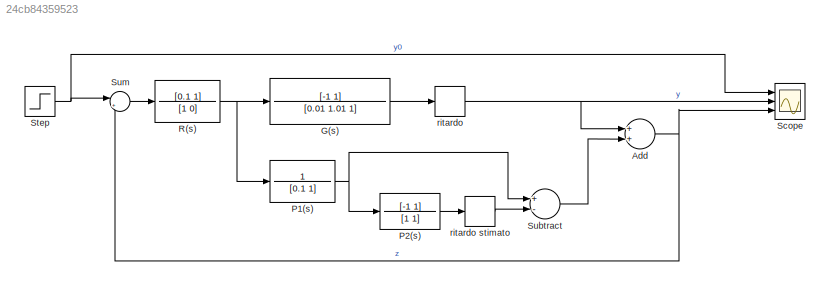
MODEL slx_24cb84359523
KIND model
CONFIG AbsTol = auto
CONFIG EnableMultiTasking = on
CONFIG FixedStep = 1e-3
CONFIG MaxStep = auto
CONFIG MinStep = auto
CONFIG RelTol = 1e-3
CONFIG SampleTimeConstraint = Unconstrained
CONFIG Solver = FixedStepAuto
CONFIG SolverName = FixedStepAuto
CONFIG StartTime = 0.0
CONFIG StopTime = 10
BLOCK [Sum] Add
  InputSameDT = off
  OutDataTypeStr = Inherit: Inherit via internal rule
  Ports = [2, 1]
  SaturateOnIntegerOverflow = off
BLOCK [TransferFcn] G(s)
  Denominator = [0.01 1.01 1]
  Numerator = [-1 1]
BLOCK [TransferFcn] P1(s)
  Denominator = [0.1 1]
  Numerator = 1
BLOCK [TransferFcn] P2(s)
  Denominator = [1 1]
  Numerator = [-1 1]
BLOCK [TransferFcn] R(s)
  Denominator = [1 0]
  Numerator = [0.1 1]
BLOCK [Scope] Scope
  Floating = off
  NumInputPorts = 3
  Ports = [3]
  ScopeSpecificationString = Simulink.scopes.TimeScopeBlockCfg('CurrentConfiguration', extmgr.ConfigurationSet(extmgr.Configuration('Core','General UI',true),extmgr.Configuration('Core','Source UI',true),extmgr.Configuration('Sources','WiredSimulink',true,'DataLoggingSaveFormat','StructureWithTime','DataLoggingDecimation','1','DataLoggingDecimateData',true),extmgr.Configuration('Visuals','Time Domain',true,'SerializedDisplays...<+1583ch>
BLOCK [Step] Step
  SampleTime = 0
  Time = 0
BLOCK [Sum] Subtract
  InputSameDT = off
  Inputs = +-
  OutDataTypeStr = Inherit: Inherit via internal rule
  Ports = [2, 1]
  SaturateOnIntegerOverflow = off
BLOCK [Sum] Sum
  IconShape = round
  Inputs = |+-
  Ports = [2, 1]
BLOCK [TransportDelay] ritardo
  Ports = [1, 1]
BLOCK [TransportDelay] ritardo stimato
  Ports = [1, 1]
NET Add:1 -> Scope:3, Sum:2
LINE G(s):1 -> ritardo:1
NET P1(s):1 -> P2(s):1, Subtract:1
LINE P2(s):1 -> ritardo stimato:1
NET R(s):1 -> G(s):1, P1(s):1
NET Step:1 -> Scope:1, Sum:1
LINE Subtract:1 -> Add:2
LINE Sum:1 -> R(s):1
LINE ritardo stimato:1 -> Subtract:2
NET ritardo:1 -> Add:1, Scope:2
note: NET lines group one-source signal fan-out (src -> all destinations, sorted); 1:1 wires keep LINE
